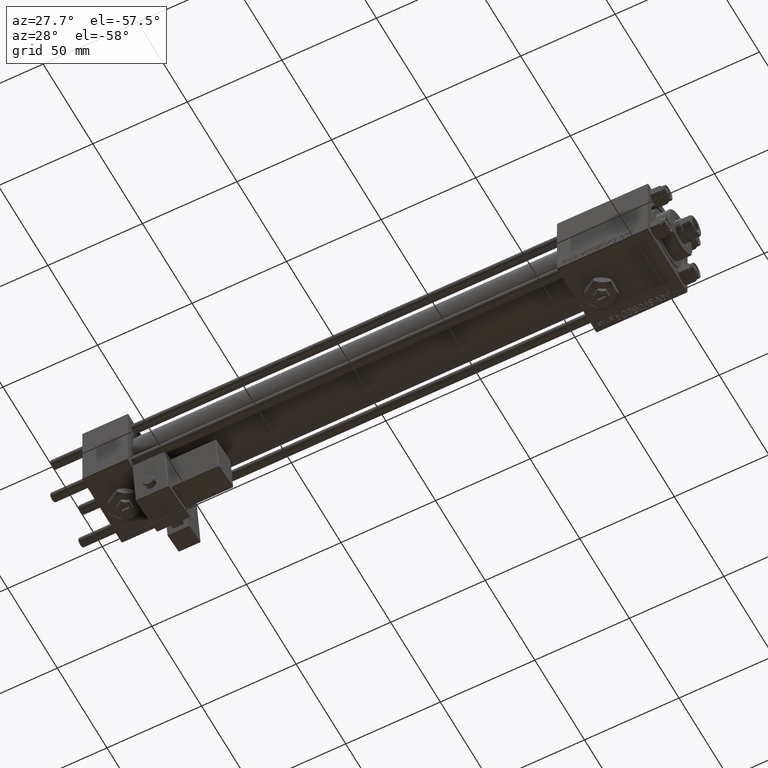
[diagram: clean part render]
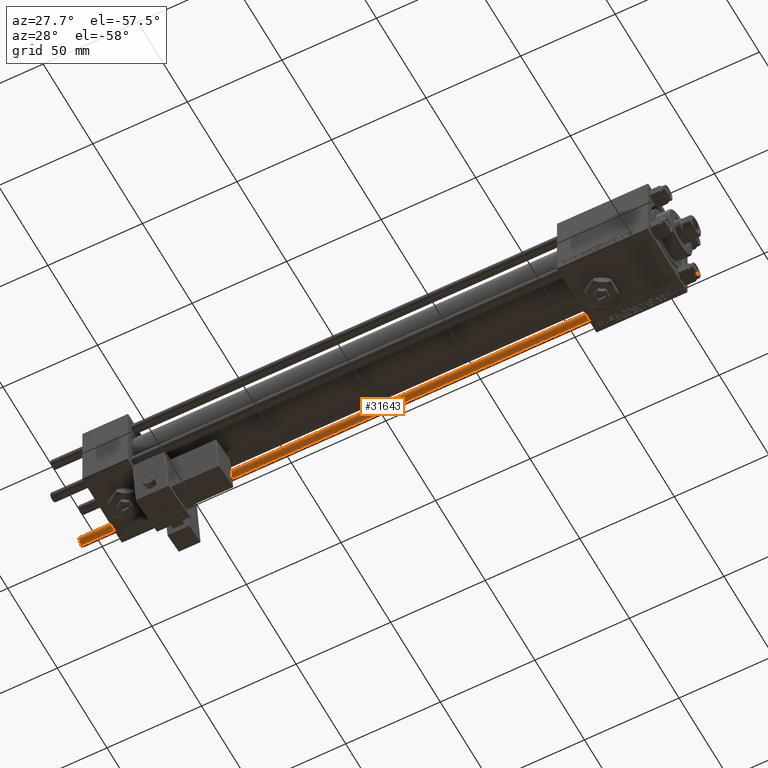
[diagram: same view with one face highlighted and labeled with its STEP entity id]
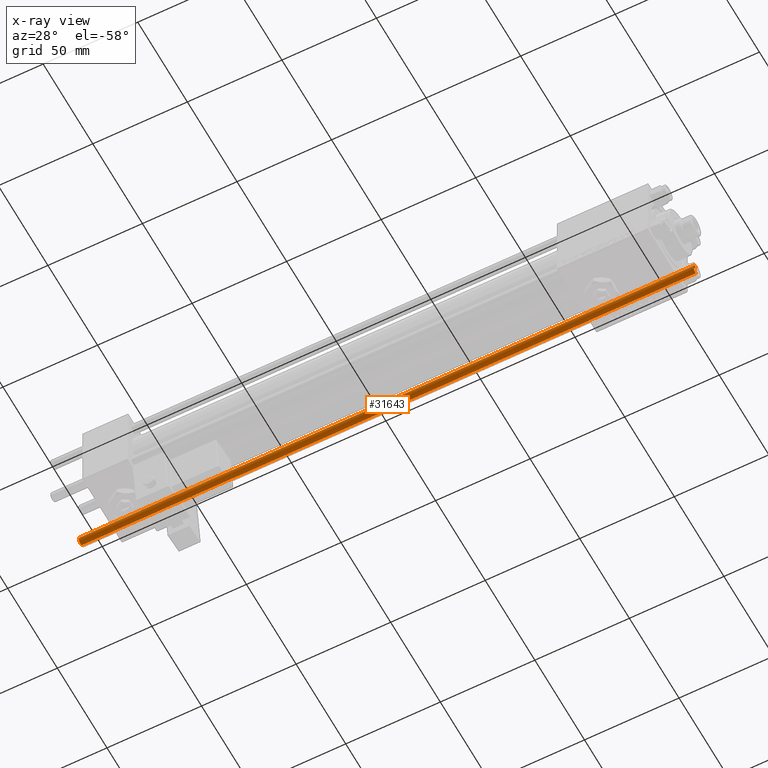
[diagram: x-ray of the same camera — body ghosted, the highlighted face saturated]
A machine part, auxiliary view. The second image highlights one B-rep face of the part: STEP entity #31643.
The next image is the same camera in x-ray: the body ghosted, the highlighted face saturated — about 1% of this face is hidden behind the body in this view.
In plain terms, the highlighted cylindrical surface (edge-blend (fillet) strip) has radius 2.5 mm, axis along (1, 0, -0).
Its self-contained STEP definition (entity closure, byte-faithful):
#1847 = CARTESIAN_POINT ( 'NONE',  ( 0.000000000000000000, 0.000000000000000000, 0.4999999999999449329 ) ) ;
#3533 = ORIENTED_EDGE ( 'NONE', *, *, #10990, .T. ) ;
#3594 = DIRECTION ( 'NONE',  ( 1.000000000000000000, 0.000000000000000000, 0.000000000000000000 ) ) ;
#4758 = LINE ( 'NONE', #34000, #39579 ) ;
#5682 = DIRECTION ( 'NONE',  ( -0.000000000000000000, -0.000000000000000000, 1.000000000000000000 ) ) ;
#7801 = CIRCLE ( 'NONE', #31380, 2.500000000000000000 ) ;
#8790 = EDGE_CURVE ( 'NONE', #13750, #20607, #7801, .T. ) ;
#8836 = CARTESIAN_POINT ( 'NONE',  ( 2.500000000000000000, 3.061616997868383141E-16, 0.4999999999999449329 ) ) ;
#9687 = DIRECTION ( 'NONE',  ( -0.000000000000000000, -0.000000000000000000, -1.000000000000000000 ) ) ;
#10990 = EDGE_CURVE ( 'NONE', #17584, #44740, #27133, .T. ) ;
#13125 = DIRECTION ( 'NONE',  ( -1.000000000000000000, 0.000000000000000000, 0.000000000000000000 ) ) ;
#13750 = VERTEX_POINT ( 'NONE', #47572 ) ;
#17528 = EDGE_CURVE ( 'NONE', #20607, #17584, #4758, .T. ) ;
#17584 = VERTEX_POINT ( 'NONE', #52556 ) ;
#18288 = LINE ( 'NONE', #19078, #34713 ) ;
#18538 = DIRECTION ( 'NONE',  ( 1.000000000000000000, 0.000000000000000000, 0.000000000000000000 ) ) ;
#18556 = DIRECTION ( 'NONE',  ( -0.000000000000000000, -0.000000000000000000, -1.000000000000000000 ) ) ;
#19078 = CARTESIAN_POINT ( 'NONE',  ( 2.500000000000000000, 3.061616997868383141E-16, 326.0000000000000000 ) ) ;
#20238 = CYLINDRICAL_SURFACE ( 'NONE', #53072, 2.500000000000000000 ) ;
#20607 = VERTEX_POINT ( 'NONE', #34514 ) ;
#20726 = ORIENTED_EDGE ( 'NONE', *, *, #17528, .T. ) ;
#23868 = DIRECTION ( 'NONE',  ( 0.000000000000000000, 0.000000000000000000, -1.000000000000000000 ) ) ;
#27133 = CIRCLE ( 'NONE', #41073, 2.500000000000000000 ) ;
#28457 = FACE_OUTER_BOUND ( 'NONE', #32418, .T. ) ;
#29578 = EDGE_CURVE ( 'NONE', #13750, #44740, #18288, .T. ) ;
#31380 = AXIS2_PLACEMENT_3D ( 'NONE', #40271, #23868, #3594 ) ;
#31643 = ADVANCED_FACE ( 'NONE', ( #28457 ), #20238, .T. ) ;
#31717 = ORIENTED_EDGE ( 'NONE', *, *, #29578, .F. ) ;
#32418 = EDGE_LOOP ( 'NONE', ( #31717, #47161, #20726, #3533 ) ) ;
#34000 = CARTESIAN_POINT ( 'NONE',  ( -2.500000000000000000, 0.000000000000000000, 326.0000000000000000 ) ) ;
#34514 = CARTESIAN_POINT ( 'NONE',  ( -2.500000000000000000, 0.000000000000000000, 325.5000000000000000 ) ) ;
#34713 = VECTOR ( 'NONE', #18556, 1000.000000000000000 ) ;
#39358 = DIRECTION ( 'NONE',  ( -0.000000000000000000, -0.000000000000000000, -1.000000000000000000 ) ) ;
#39579 = VECTOR ( 'NONE', #9687, 1000.000000000000000 ) ;
#40271 = CARTESIAN_POINT ( 'NONE',  ( 0.000000000000000000, 0.000000000000000000, 325.5000000000000000 ) ) ;
#41073 = AXIS2_PLACEMENT_3D ( 'NONE', #1847, #5682, #18538 ) ;
#44740 = VERTEX_POINT ( 'NONE', #8836 ) ;
#47161 = ORIENTED_EDGE ( 'NONE', *, *, #8790, .T. ) ;
#47572 = CARTESIAN_POINT ( 'NONE',  ( 2.500000000000000000, 3.061616997868383141E-16, 325.5000000000000000 ) ) ;
#52556 = CARTESIAN_POINT ( 'NONE',  ( -2.500000000000000000, 0.000000000000000000, 0.4999999999999449329 ) ) ;
#53072 = AXIS2_PLACEMENT_3D ( 'NONE', #53565, #39358, #13125 ) ;
#53565 = CARTESIAN_POINT ( 'NONE',  ( 0.000000000000000000, 0.000000000000000000, 326.0000000000000000 ) ) ;